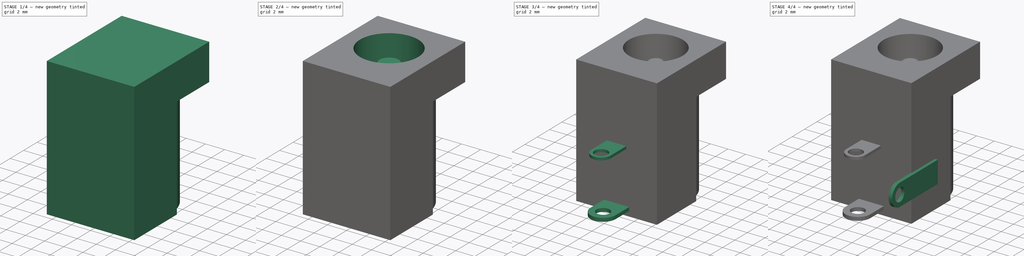
[diagram: build sequence overview — one tinted view per stage of 4, left to right]
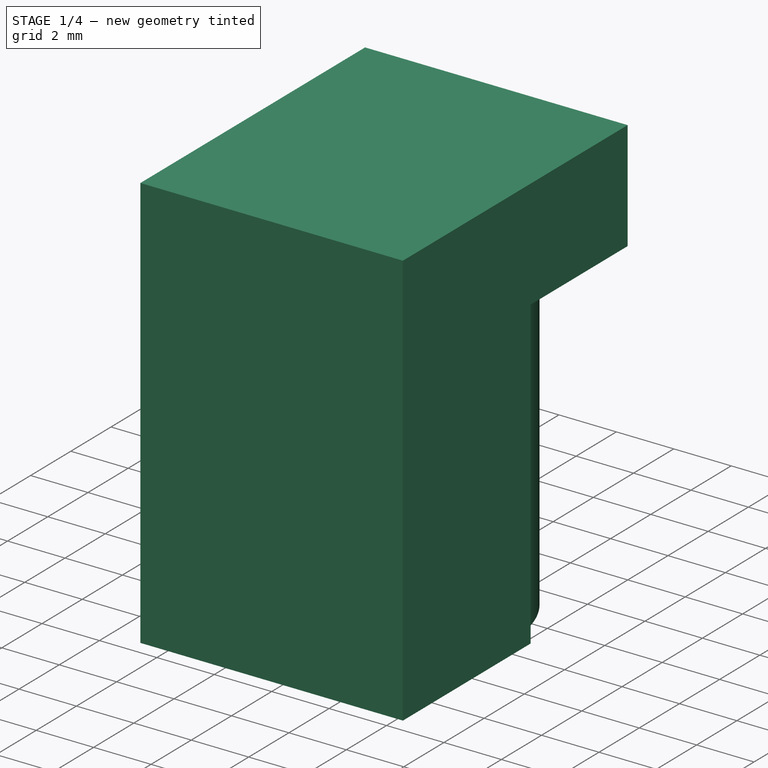
[diagram: stage 1 of 4 — iso view after this stage's code; geometry added in this stage tinted green]
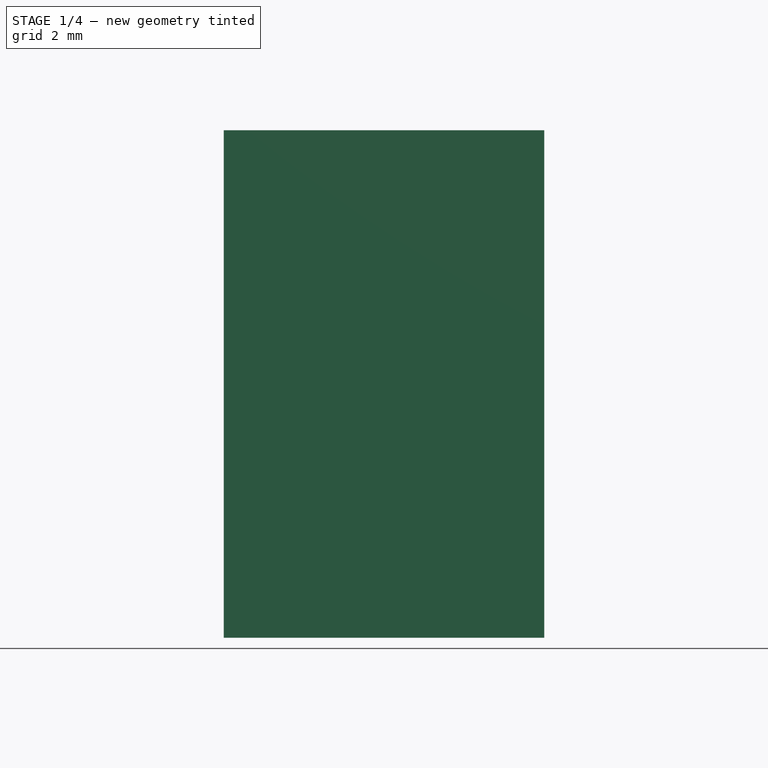
[diagram: stage 1 of 4 — front view after this stage's code; geometry added in this stage tinted green]
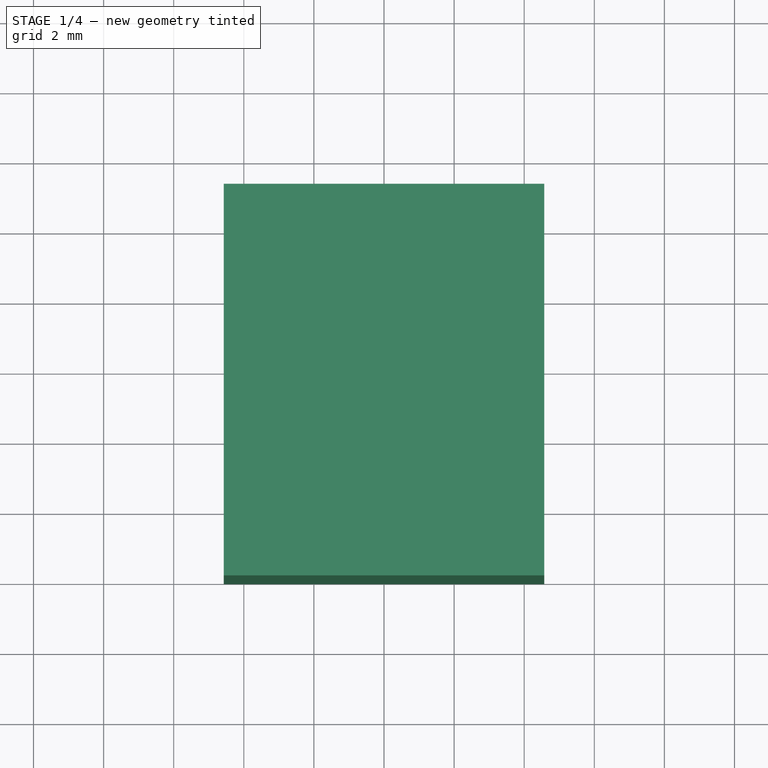
[diagram: stage 1 of 4 — top view after this stage's code; geometry added in this stage tinted green]
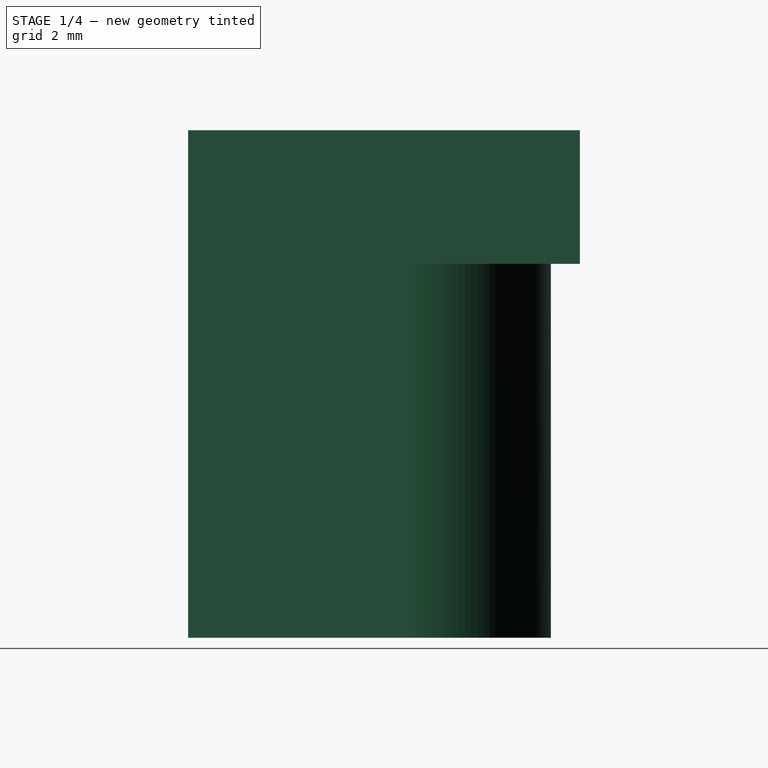
[diagram: stage 1 of 4 — right view after this stage's code; geometry added in this stage tinted green]
FCSTD DOCUMENT  (FreeCAD 0.14R3702 (Git))
Label: jack_DC_2.1mm_PCB
License: CC-BY 3.0
LicenseURL: http://creativecommons.org/licenses/by/3.0/
objects: Sketcher::SketchObject×7, PartDesign::Pad×5, Part::Feature×2, PartDesign::Pocket×2, Part::Fillet×1, Part::MultiFuse×1
note: 25 computed .brp shape members not serialized (recipe doc carries the construction recipe); baked Part::Feature solids carry a one-line shape summary decoded from their .brp

FEATURE [Part::Feature] Part__Feature  label="male-jack"
  shape: bbox 9.474 x 14.78 x 14.48 mm, 34 faces (baked)
FEATURE [Sketcher::SketchObject] Sketch  label="main-body-sketch"
  sketch-geometry (4):
    g0: LineSegment StartX=-4.572 StartY=11.176 StartZ=0 EndX=4.572 EndY=11.176 EndZ=0
    g1: LineSegment StartX=4.572 StartY=11.176 StartZ=0 EndX=4.572 EndY=0 EndZ=0
    g2: LineSegment StartX=4.572 StartY=0 StartZ=0 EndX=-4.572 EndY=0 EndZ=0
    g3: LineSegment StartX=-4.572 StartY=0 StartZ=0 EndX=-4.572 EndY=11.176 EndZ=0
  constraints (12):
    c: Coincident(g0,g1)
    c: Coincident(g1,g2)
    c: Coincident(g2,g3)
    c: Coincident(g3,g0)
    c: Horizontal(g0)
    c: Horizontal(g2)
    c: Vertical(g1)
    c: Vertical(g3)
    c: PointOnObject(g1,g-1)
    c: Symmetric(g0,g0,g-2)
    c: DistanceX(g0) = 9.144
    c: DistanceY(g1) = -11.176
FEATURE [PartDesign::Pad] Pad  label="main-body"
  Length = 14.478
  Length2 = 100
  Reversed = true
  Sketch = -> Sketch
  Type = 0
FEATURE [Sketcher::SketchObject] Sketch001  label="cutout-1-sketch"
  ExternalGeometry = -> [Pad]
  Placement = pos=(0,0,-14.478) rot=(1,0,0;3.14159rad)
  Support = -> Pad [Face6]
  sketch-geometry (7):
    g0: LineSegment StartX=-4.572 StartY=-6.35 StartZ=0 EndX=-4 EndY=-6.35 EndZ=0
    g1: ArcOfCircle CenterX=0 CenterY=-6.35 CenterZ=0 NormalX=0 NormalY=0 NormalZ=1 Radius=4 StartAngle=3.14159 EndAngle=6.28319
    g2: LineSegment [constr] StartX=-4 StartY=-6.35 StartZ=0 EndX=4 EndY=-6.35 EndZ=0
    g3: LineSegment StartX=4 StartY=-6.35 StartZ=0 EndX=4.572 EndY=-6.35 EndZ=0
    g4: LineSegment StartX=-4.572 StartY=-6.35 StartZ=0 EndX=-4.572 EndY=-11.176 EndZ=0
    g5: LineSegment StartX=-4.572 StartY=-11.176 StartZ=0 EndX=4.572 EndY=-11.176 EndZ=0
    g6: LineSegment StartX=4.572 StartY=-11.176 StartZ=0 EndX=4.572 EndY=-6.35 EndZ=0
  constraints (22):
    c: Horizontal(g0)
    c: PointOnObject(g1,g-2)
    c: Coincident(g1,g0)
    c: Symmetric(g0,g1,g-2)
    c: Horizontal(g2)
    c: PointOnObject(g1,g2)
    c: Radius(g1) = 4
    c: Coincident(g2,g1)
    c: Coincident(g2,g0)
    c: PointOnObject(g0,g-3)
    c: Horizontal(g3)
    c: Coincident(g3,g1)
    c: PointOnObject(g3,g-4)
    c: Coincident(g4,g5)
    c: Coincident(g5,g6)
    c: Vertical(g4)
    c: Vertical(g6)
    c: Horizontal(g5)
    c: Coincident(g4,g0)
    c: Coincident(g6,g3)
    c: Coincident(g5,g-4)
    c: DistanceY(g3,g5) = -4.826
FEATURE [PartDesign::Pocket] Pocket  label="cutout-1"
  Length = 10.668
  Sketch = -> Sketch001
  Type = 0
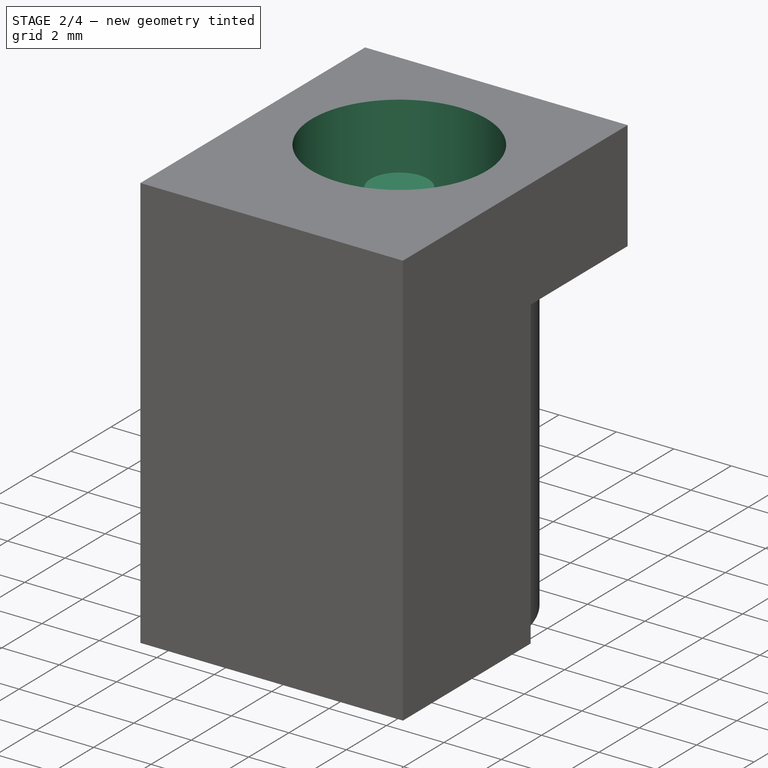
[diagram: stage 2 of 4 — iso view after this stage's code; geometry added in this stage tinted green]
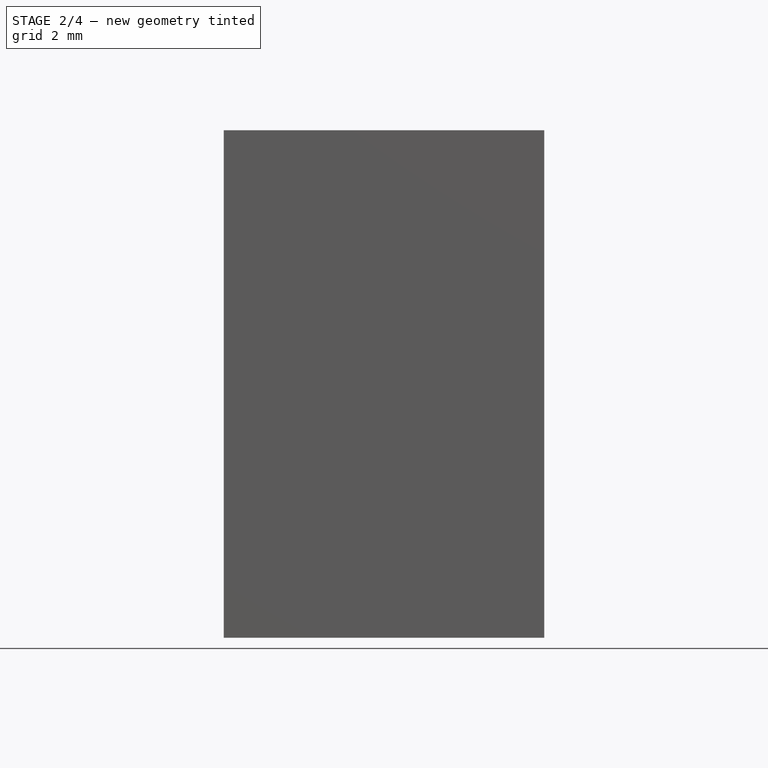
[diagram: stage 2 of 4 — front view after this stage's code; geometry added in this stage tinted green]
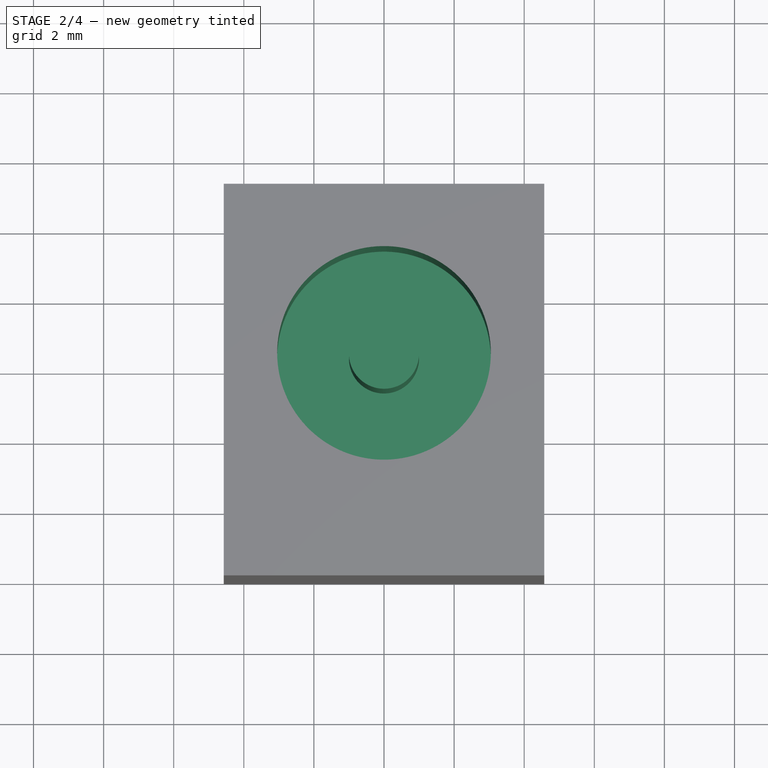
[diagram: stage 2 of 4 — top view after this stage's code; geometry added in this stage tinted green]
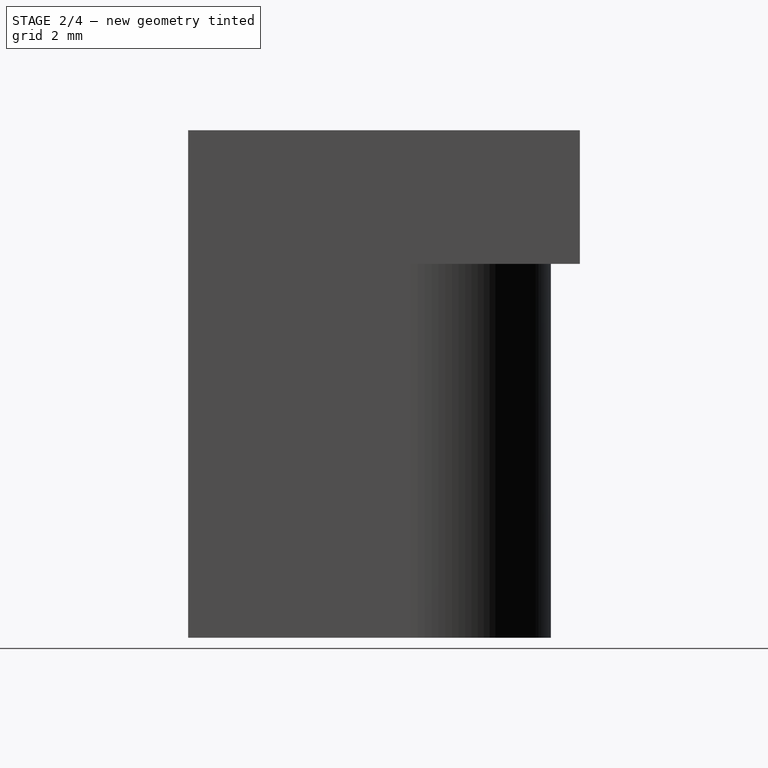
[diagram: stage 2 of 4 — right view after this stage's code; geometry added in this stage tinted green]
FEATURE [Sketcher::SketchObject] Sketch002  label="cutout-2-sketch"
  ExternalGeometry = -> [Pocket]
  Support = -> Pocket [Face2]
  sketch-geometry (1):
    g0: Circle CenterX=0 CenterY=6.35 CenterZ=0 NormalX=0 NormalY=0 NormalZ=1 Radius=3.048
  constraints (3):
    c: PointOnObject(g0,g-2)
    c: PointOnObject(g0,g-3)
    c: Radius(g0) = 3.048
FEATURE [PartDesign::Pocket] Pocket001  label="cutout-2"
  Length = 9.144
  Sketch = -> Sketch002
  Type = 0
FEATURE [Sketcher::SketchObject] Sketch003  label="inner-cylinder-sketch"
  Placement = pos=(0,0,-9.144) rot=(0,0,1;0rad)
  Support = -> Pocket001 [Face12]
  sketch-geometry (1):
    g0: Circle CenterX=0 CenterY=6.35 CenterZ=0 NormalX=0 NormalY=0 NormalZ=1 Radius=1
  constraints (1):
    c: Radius(g0) = 1
FEATURE [PartDesign::Pad] Pad001  label="inner-cylinder"
  Length = 7.804
  Length2 = 100
  Sketch = -> Sketch003
  Type = 0
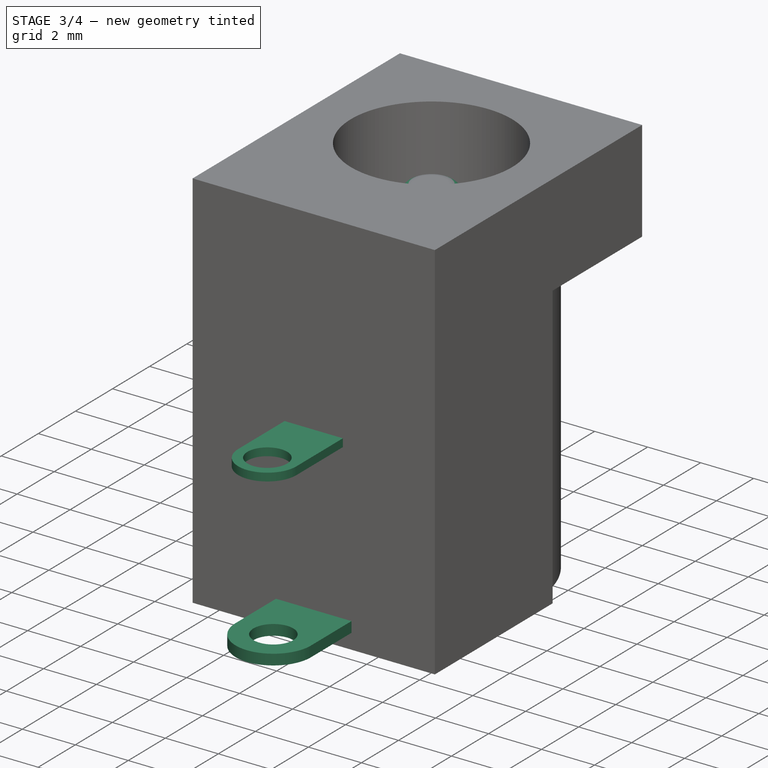
[diagram: stage 3 of 4 — iso view after this stage's code; geometry added in this stage tinted green]
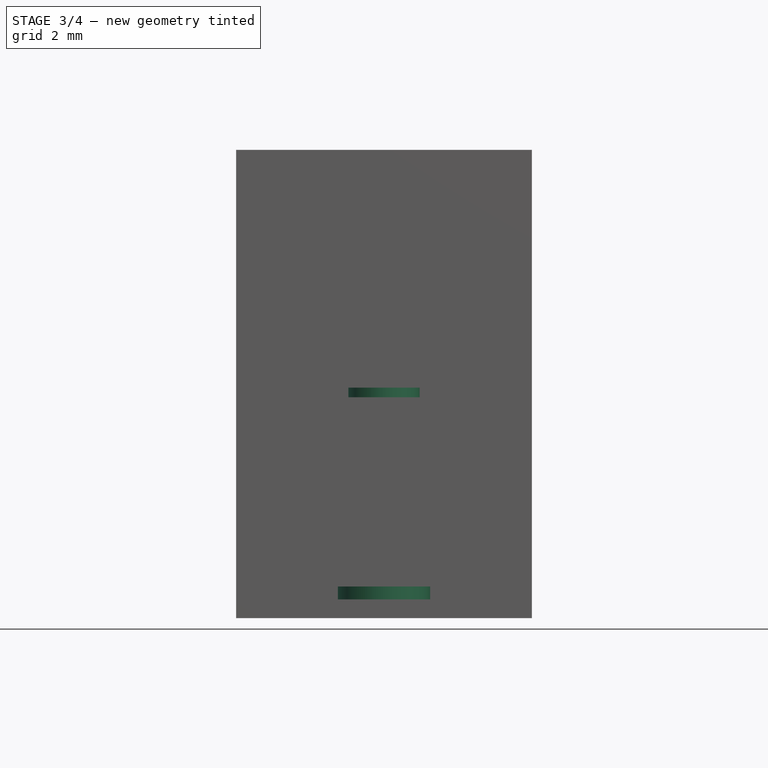
[diagram: stage 3 of 4 — front view after this stage's code; geometry added in this stage tinted green]
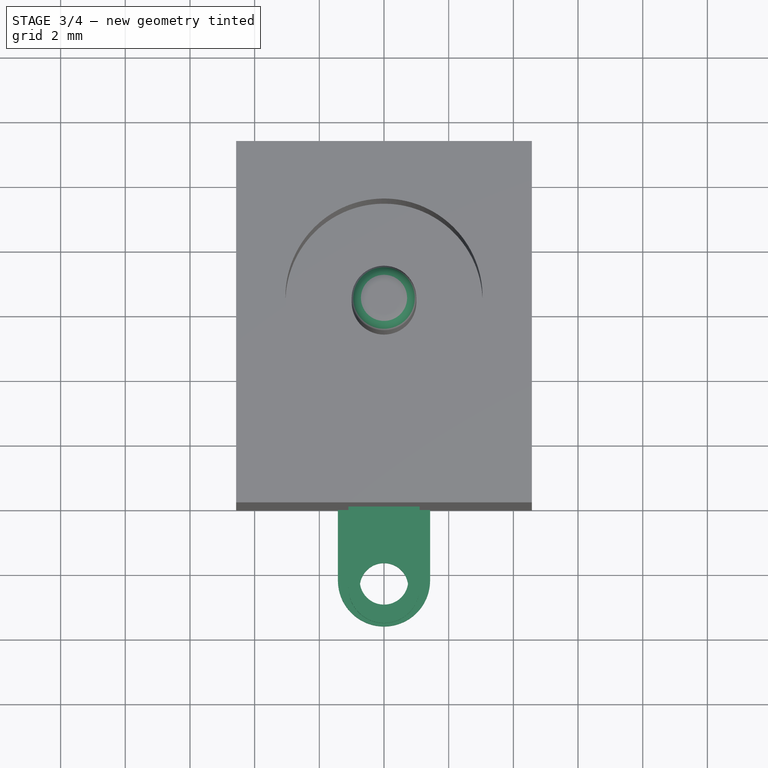
[diagram: stage 3 of 4 — top view after this stage's code; geometry added in this stage tinted green]
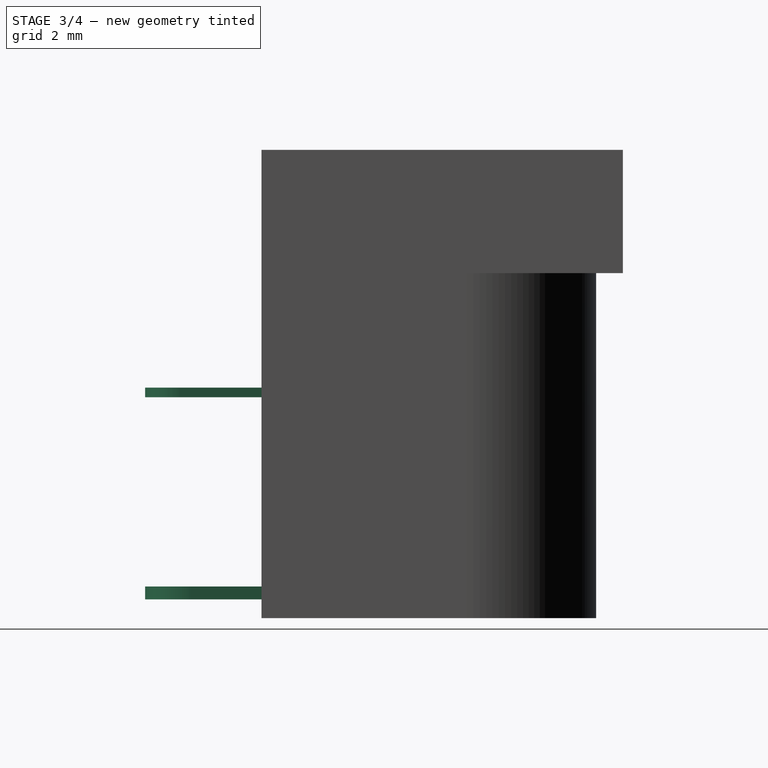
[diagram: stage 3 of 4 — right view after this stage's code; geometry added in this stage tinted green]
FEATURE [Sketcher::SketchObject] Sketch005  label="frontal-pin-sketch"
  Placement = pos=(0,0,-7.65) rot=(0,0,1;0rad)
  sketch-geometry (6):
    g0: LineSegment StartX=-1.1 StartY=0 StartZ=0 EndX=1.1 EndY=0 EndZ=0
    g1: LineSegment StartX=1.1 StartY=0 StartZ=0 EndX=1.1 EndY=-2.5 EndZ=0
    g2: LineSegment [constr] StartX=1.1 StartY=-2.5 StartZ=0 EndX=-1.1 EndY=-2.5 EndZ=0
    g3: LineSegment StartX=-1.1 StartY=-2.5 StartZ=0 EndX=-1.1 EndY=0 EndZ=0
    g4: ArcOfCircle CenterX=0 CenterY=-2.5 CenterZ=0 NormalX=0 NormalY=0 NormalZ=1 Radius=1.1 StartAngle=3.14159 EndAngle=6.28319
    g5: Circle CenterX=0 CenterY=-2.5 CenterZ=0 NormalX=0 NormalY=0 NormalZ=1 Radius=0.75
  constraints (17):
    c: Coincident(g0,g1)
    c: Coincident(g1,g2)
    c: Coincident(g2,g3)
    c: Coincident(g3,g0)
    c: Horizontal(g0)
    c: Horizontal(g2)
    c: Vertical(g1)
    c: Vertical(g3)
    c: PointOnObject(g4,g2)
    c: Coincident(g4,g2)
    c: Coincident(g4,g1)
    c: Symmetric(g0,g0,g-2)
    c: PointOnObject(g0,g-1)
    c: DistanceY(g1) = -2.5
    c: DistanceX(g0) = 2.2
    c: Coincident(g5,g4)
    c: Radius(g5) = 0.75
FEATURE [PartDesign::Pad] Pad003  label="frontal-pin"
  Length = 0.3
  Length2 = 100
  Placement = pos=(0,0,-7.65) rot=(0,0,1;0rad)
  Sketch = -> Sketch005
  Type = 0
FEATURE [Sketcher::SketchObject] Sketch006  label="rear-pin-sketch"
  Placement = pos=(0,0,-13.9) rot=(0,0,1;0rad)
  sketch-geometry (6):
    g0: LineSegment StartX=-1.425 StartY=0 StartZ=0 EndX=1.425 EndY=0 EndZ=0
    g1: LineSegment StartX=1.425 StartY=0 StartZ=0 EndX=1.425 EndY=-2.175 EndZ=0
    g2: LineSegment [constr] StartX=1.425 StartY=-2.175 StartZ=0 EndX=-1.425 EndY=-2.175 EndZ=0
    g3: LineSegment StartX=-1.425 StartY=-2.175 StartZ=0 EndX=-1.425 EndY=0 EndZ=0
    g4: ArcOfCircle CenterX=0 CenterY=-2.175 CenterZ=0 NormalX=0 NormalY=0 NormalZ=1 Radius=1.425 StartAngle=3.14159 EndAngle=6.28319
    g5: Circle CenterX=0 CenterY=-2.175 CenterZ=0 NormalX=0 NormalY=0 NormalZ=1 Radius=0.75
  constraints (17):
    c: Coincident(g0,g1)
    c: Coincident(g1,g2)
    c: Coincident(g2,g3)
    c: Coincident(g3,g0)
    c: Horizontal(g0)
    c: Horizontal(g2)
    c: Vertical(g1)
    c: Vertical(g3)
    c: Symmetric(g0,g0,g-2)
    c: PointOnObject(g0,g-1)
    c: DistanceX(g0) = 2.85
    c: DistanceY(g3) = 2.175
    c: PointOnObject(g4,g2)
    c: Coincident(g4,g2)
    c: Coincident(g4,g1)
    c: Coincident(g5,g4)
    c: Radius(g5) = 0.75
FEATURE [PartDesign::Pad] Pad004  label="rear-pin"
  Length = 0.4
  Length2 = 100
  Placement = pos=(0,0,-13.9) rot=(0,0,1;0rad)
  Sketch = -> Sketch006
  Type = 0
FEATURE [Part::Fillet] Fillet
  Base = -> Pad001
  Edges = 1 edges r=0.5: [Edge30]
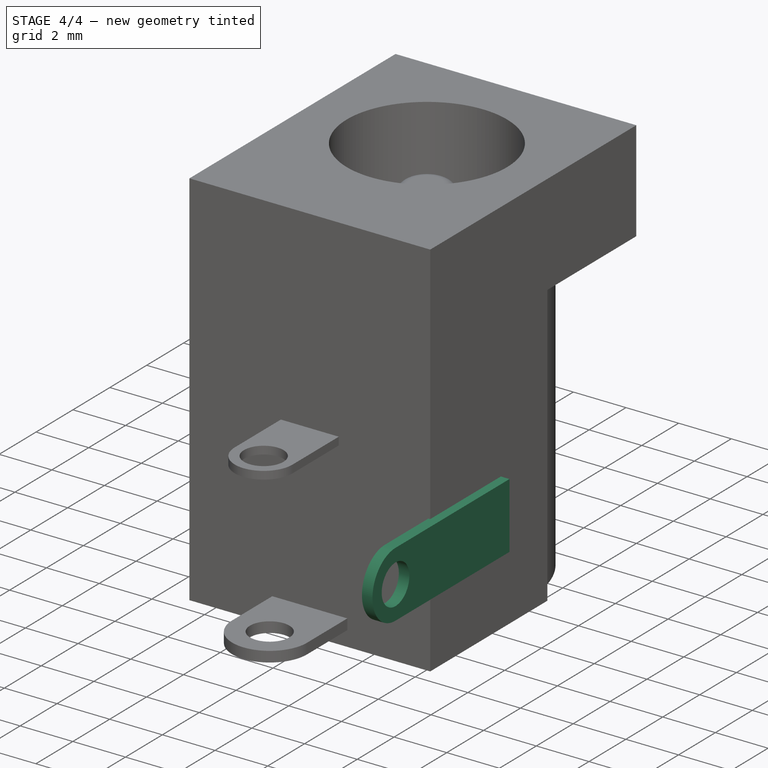
[diagram: stage 4 of 4 — iso view after this stage's code; geometry added in this stage tinted green]
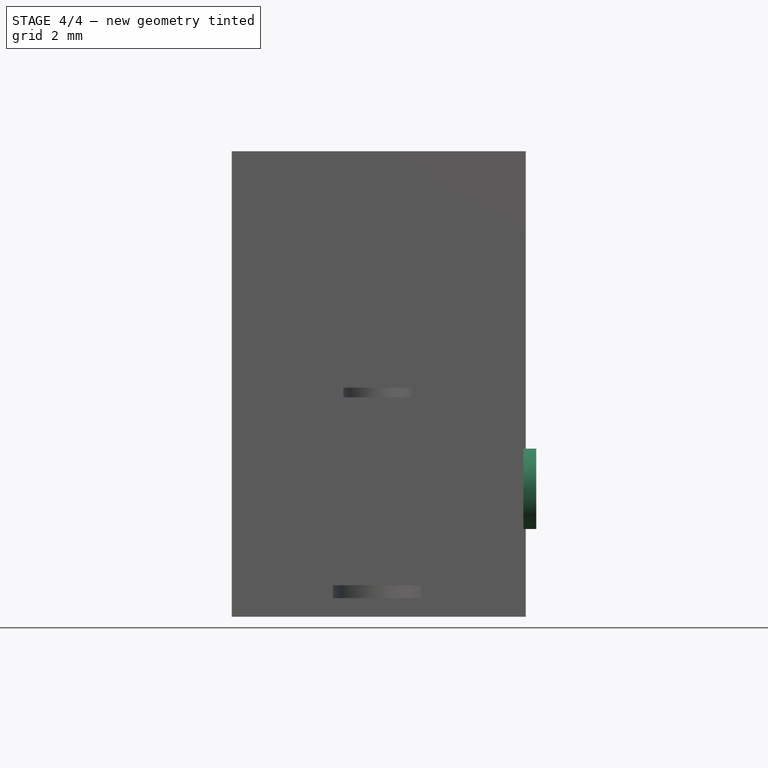
[diagram: stage 4 of 4 — front view after this stage's code; geometry added in this stage tinted green]
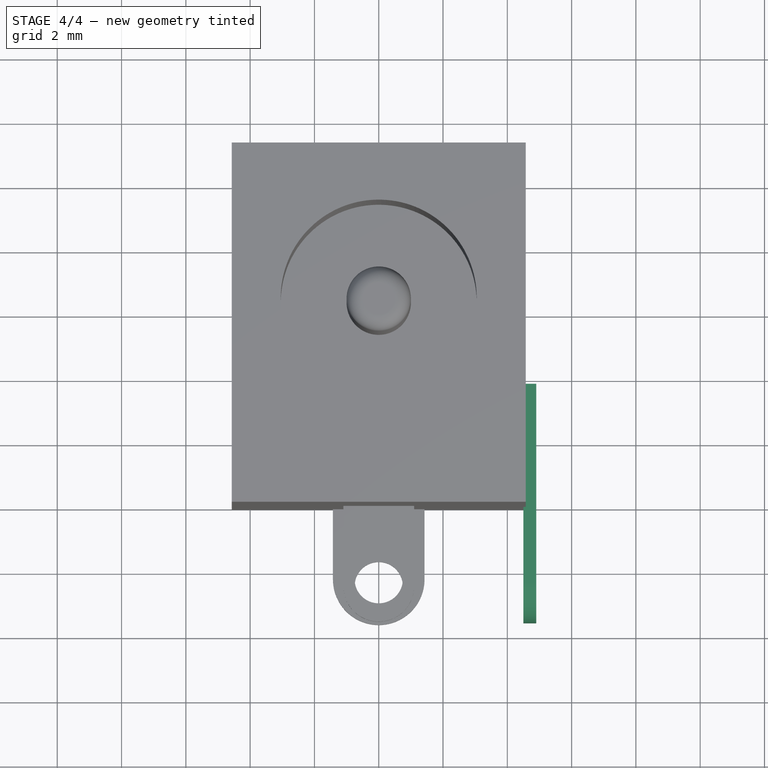
[diagram: stage 4 of 4 — top view after this stage's code; geometry added in this stage tinted green]
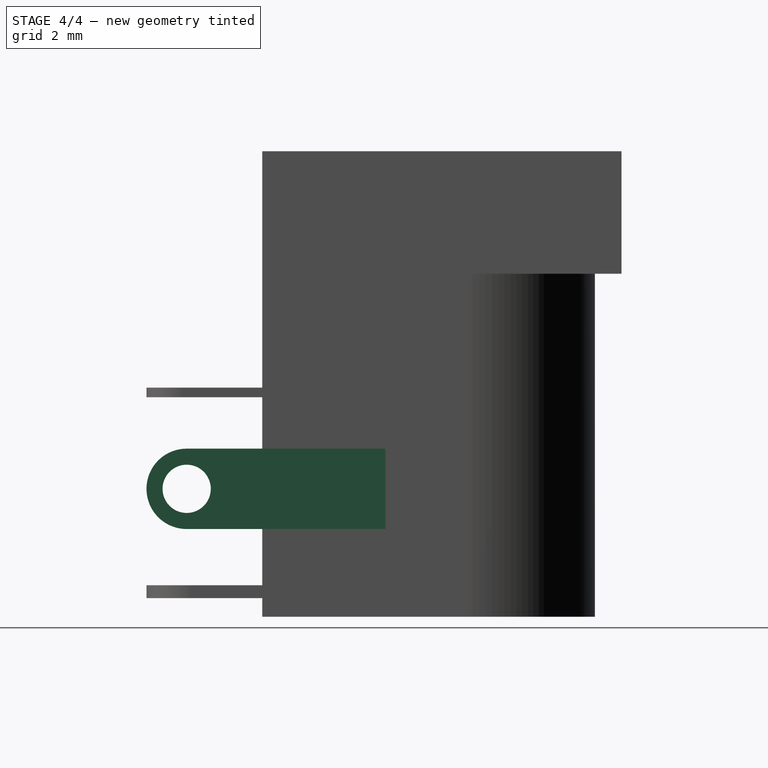
[diagram: stage 4 of 4 — right view after this stage's code; geometry added in this stage tinted green]
FEATURE [Sketcher::SketchObject] Sketch004  label="right-pin-sketch"
  Placement = pos=(4.5,-7.6294e-08,0) rot=(0.57735,0.57735,0.57735;2.0944rad)
  sketch-geometry (6):
    g0: LineSegment StartX=-2.35 StartY=-9.25 StartZ=0 EndX=3.83 EndY=-9.25 EndZ=0
    g1: LineSegment StartX=3.83 StartY=-9.25 StartZ=0 EndX=3.83 EndY=-11.75 EndZ=0
    g2: LineSegment StartX=3.83 StartY=-11.75 StartZ=0 EndX=-2.35 EndY=-11.75 EndZ=0
    g3: LineSegment [constr] StartX=-2.35 StartY=-11.75 StartZ=0 EndX=-2.35 EndY=-9.25 EndZ=0
    g4: ArcOfCircle CenterX=-2.35 CenterY=-10.5 CenterZ=0 NormalX=0 NormalY=0 NormalZ=1 Radius=1.25 StartAngle=1.5708 EndAngle=4.71239
    g5: Circle CenterX=-2.35 CenterY=-10.5 CenterZ=0 NormalX=0 NormalY=0 NormalZ=1 Radius=0.75
  constraints (17):
    c: Coincident(g0,g1)
    c: Coincident(g1,g2)
    c: Coincident(g2,g3)
    c: Coincident(g3,g0)
    c: Vertical(g3)
    c: Horizontal(g0)
    c: Vertical(g1)
    c: Horizontal(g2)
    c: PointOnObject(g4,g3)
    c: Coincident(g4,g0)
    c: Coincident(g4,g2)
    c: DistanceX(g2) = -6.18
    c: DistanceY(g1) = -2.5
    c: DistanceY(g-1,g4) = -10.5
    c: DistanceX(g-1,g4) = -2.35
    c: Coincident(g5,g4)
    c: Radius(g5) = 0.75
FEATURE [PartDesign::Pad] Pad002  label="right-pin"
  Length = 0.4
  Length2 = 100
  Placement = pos=(4.5,-7.6294e-08,0) rot=(0.57735,0.57735,0.57735;2.0944rad)
  Sketch = -> Sketch004
  Type = 0
FEATURE [Part::MultiFuse] Fusion  label="body-with-pins"
  Shapes = -> [Fillet,Pad004,Pad003,Pad002]
FEATURE [Part::Feature] Fusion001  label="jack_DC_2.1mm_PCB-final"
  shape: bbox 9.472 x 14.78 x 14.48 mm, 34 faces (baked)
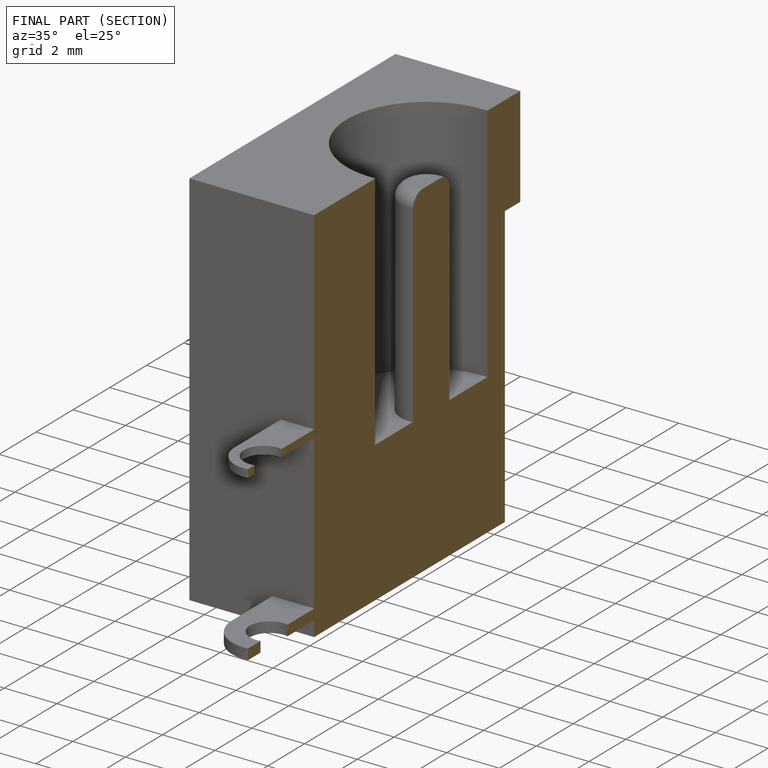
[diagram: finished part — half-section view (interior)]
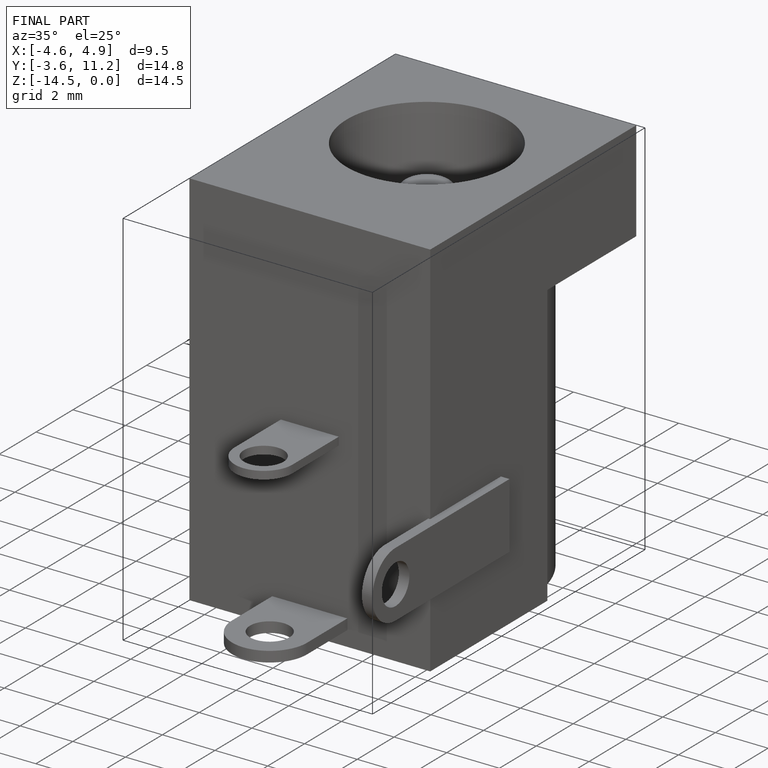
[diagram: finished part — iso view with bounding-box wireframe]
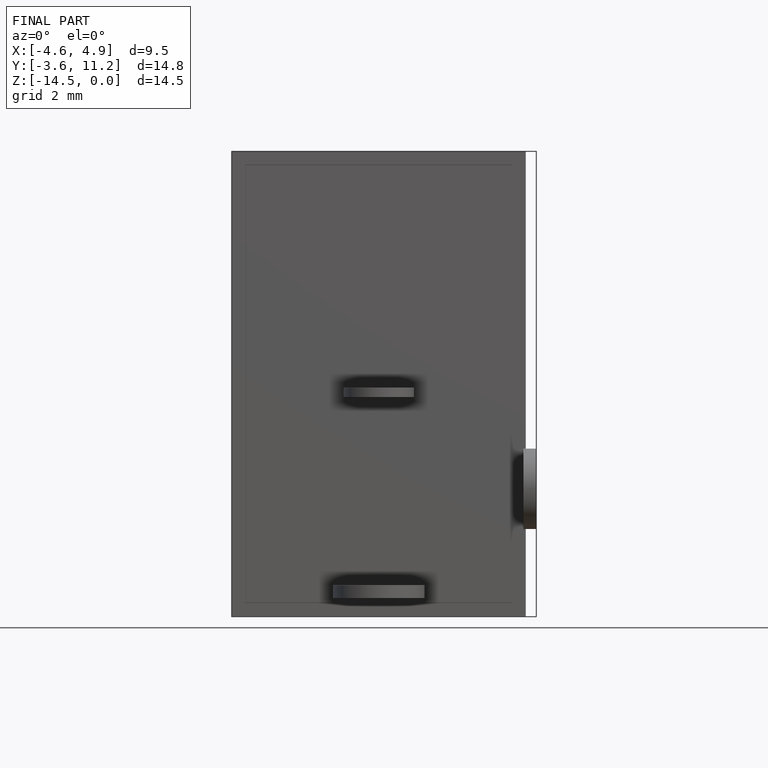
[diagram: finished part — front view with bounding-box wireframe]
